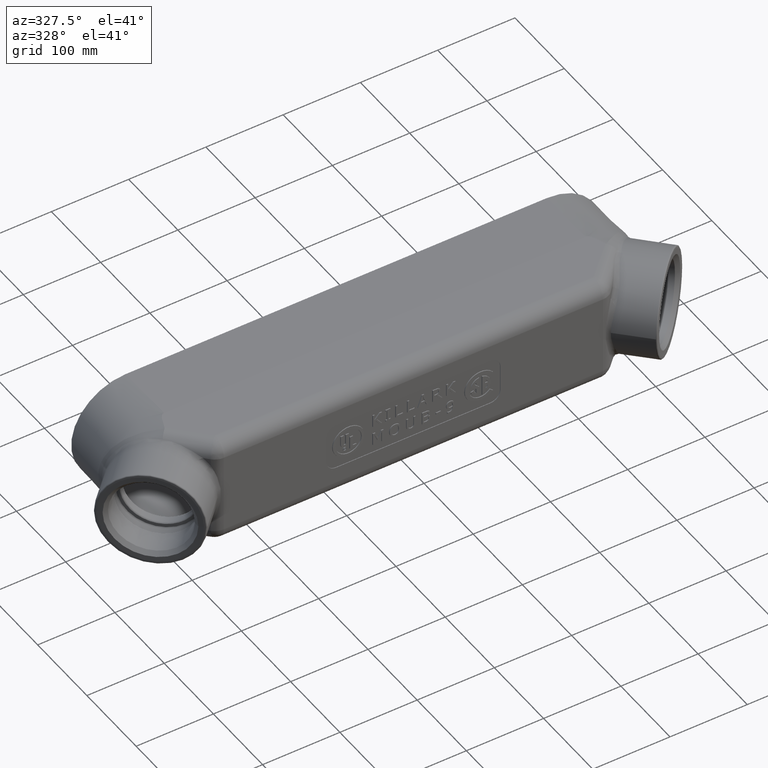
[diagram: clean part render]
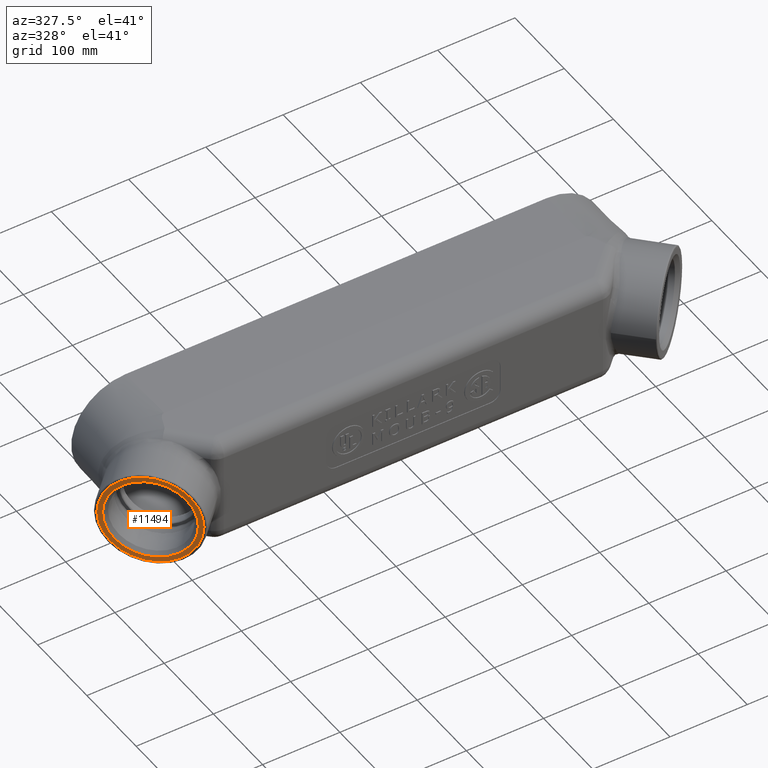
[diagram: same view with one face highlighted and labeled with its STEP entity id]
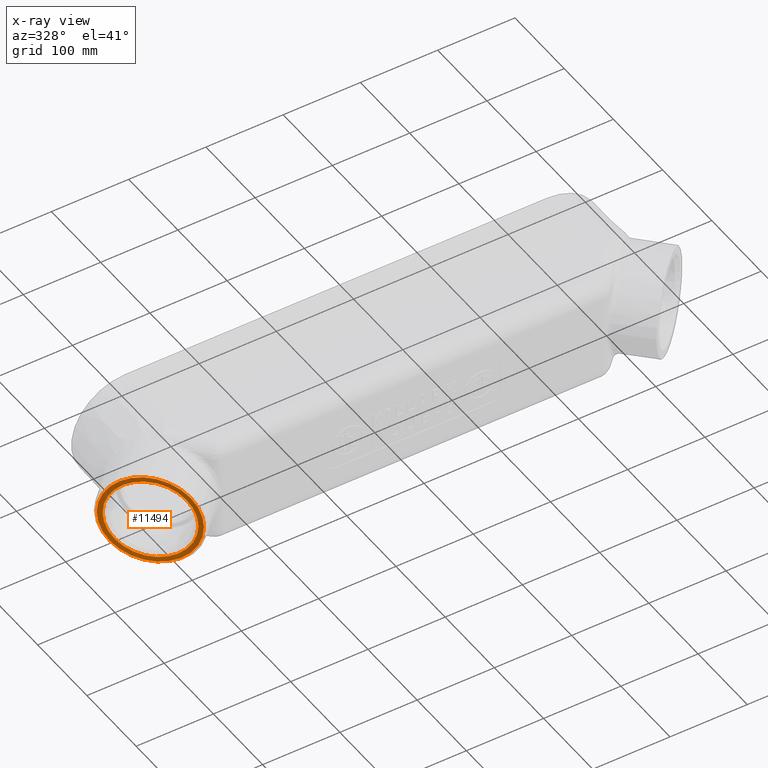
[diagram: x-ray of the same camera — body ghosted, the highlighted face saturated]
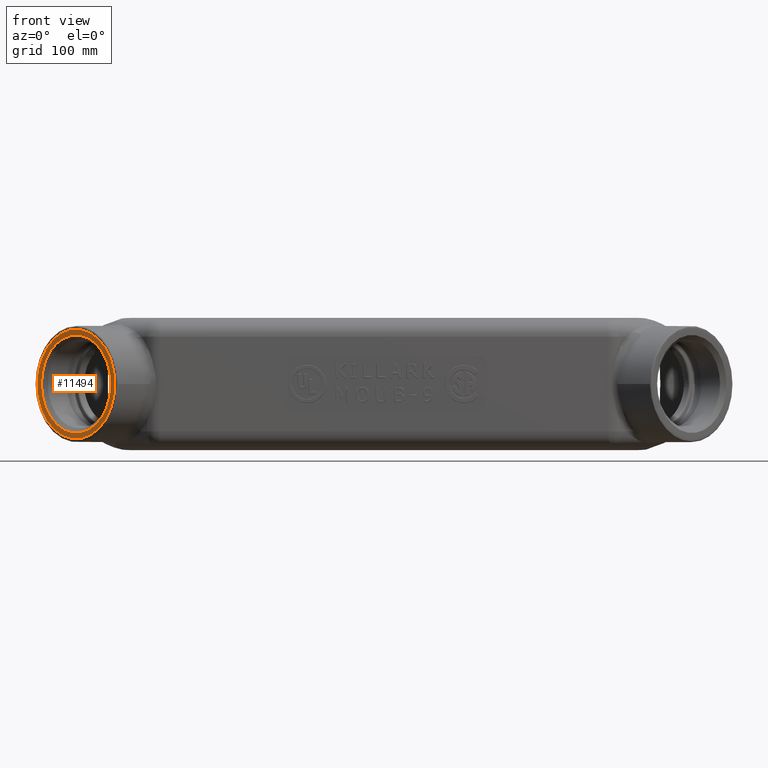
[diagram: same view with one face highlighted and labeled with its STEP entity id]
A machine part, auxiliary view. The second image highlights one B-rep face of the part: STEP entity #11494.
The next image is the same camera in x-ray: the body ghosted, the highlighted face saturated — about 0% of this face is hidden behind the body in this view.
A second angle (front view) of the same face is appended — the face is thin or edge-on in the first view.
In plain terms, the highlighted conical surface has half-angle 88 deg.
Its self-contained STEP definition (entity closure, byte-faithful):
#94=CONICAL_SURFACE('',#12277,2.2345,1.535889741755);
#237=CIRCLE('',#12185,2.1095);
#238=CIRCLE('',#12186,2.1095);
#280=CIRCLE('',#12278,2.35949999999993);
#281=CIRCLE('',#12279,2.35949999999993);
#1184=FACE_OUTER_BOUND('',#1880,.T.);
#1880=EDGE_LOOP('',(#8929,#8930,#8931,#8932,#8933,#8934));
#2574=LINE('',#23979,#3384);
#3384=VECTOR('',#13746,2.2345);
#4935=VERTEX_POINT('',#23332);
#4936=VERTEX_POINT('',#23333);
#5018=VERTEX_POINT('',#23976);
#5019=VERTEX_POINT('',#23977);
#6307=EDGE_CURVE('',#4935,#4936,#237,.T.);
#6309=EDGE_CURVE('',#4936,#4935,#238,.T.);
#6444=EDGE_CURVE('',#5018,#5019,#280,.T.);
#6445=EDGE_CURVE('',#5019,#4936,#2574,.T.);
#6446=EDGE_CURVE('',#5019,#5018,#281,.T.);
#8929=ORIENTED_EDGE('',*,*,#6444,.T.);
#8930=ORIENTED_EDGE('',*,*,#6445,.T.);
#8931=ORIENTED_EDGE('',*,*,#6307,.F.);
#8932=ORIENTED_EDGE('',*,*,#6309,.F.);
#8933=ORIENTED_EDGE('',*,*,#6445,.F.);
#8934=ORIENTED_EDGE('',*,*,#6446,.T.);
#11494=ADVANCED_FACE('',(#1184),#94,.F.);
#12185=AXIS2_PLACEMENT_3D('',#23334,#13502,#13503);
#12186=AXIS2_PLACEMENT_3D('',#23336,#13505,#13506);
#12277=AXIS2_PLACEMENT_3D('',#23975,#13742,#13743);
#12278=AXIS2_PLACEMENT_3D('',#23978,#13744,#13745);
#12279=AXIS2_PLACEMENT_3D('',#23980,#13747,#13748);
#13502=DIRECTION('center_axis',(-0.707106781186548,-0.707106781186547,0.));
#13503=DIRECTION('ref_axis',(-0.707106781186547,0.707106781186548,0.));
#13505=DIRECTION('center_axis',(-0.707106781186548,-0.707106781186547,0.));
#13506=DIRECTION('ref_axis',(-0.707106781186547,0.707106781186548,0.));
#13742=DIRECTION('center_axis',(-0.707106781186548,-0.707106781186547,0.));
#13743=DIRECTION('ref_axis',(-0.707106781186547,0.707106781186548,0.));
#13744=DIRECTION('center_axis',(-0.707106781186547,-0.707106781186548,0.));
#13745=DIRECTION('ref_axis',(-0.707106781186548,0.707106781186547,0.));
#13746=DIRECTION('',(-0.681998360062491,0.731353701619178,-1.22390077740616E-16));
#13747=DIRECTION('center_axis',(-0.707106781186547,-0.707106781186548,0.));
#13748=DIRECTION('ref_axis',(-0.707106781186548,0.707106781186547,0.));
#23332=CARTESIAN_POINT('',(-14.7224454867065,-1.33291197688043,0.));
#23333=CARTESIAN_POINT('',(-11.7391619768804,-4.31619548670647,2.58339242280134E-16));
#23334=CARTESIAN_POINT('Origin',(-13.2308037317934,-2.82455373179345,0.));
#23336=CARTESIAN_POINT('Origin',(-13.2308037317934,-2.82455373179345,0.));
#23975=CARTESIAN_POINT('Origin',(-13.2338903209074,-2.82764032090743,0.));
#23976=CARTESIAN_POINT('',(-14.9053953602311,-1.16230845981176,0.));
#23977=CARTESIAN_POINT('',(-11.5685584598118,-4.49914536023103,2.8895541225881E-16));
#23978=CARTESIAN_POINT('Origin',(-13.2369769100214,-2.83072691002142,0.));
#23979=CARTESIAN_POINT('',(-11.6538602183461,-4.40767042346877,2.73647327269476E-16));
#23980=CARTESIAN_POINT('Origin',(-13.2369769100214,-2.83072691002142,0.));